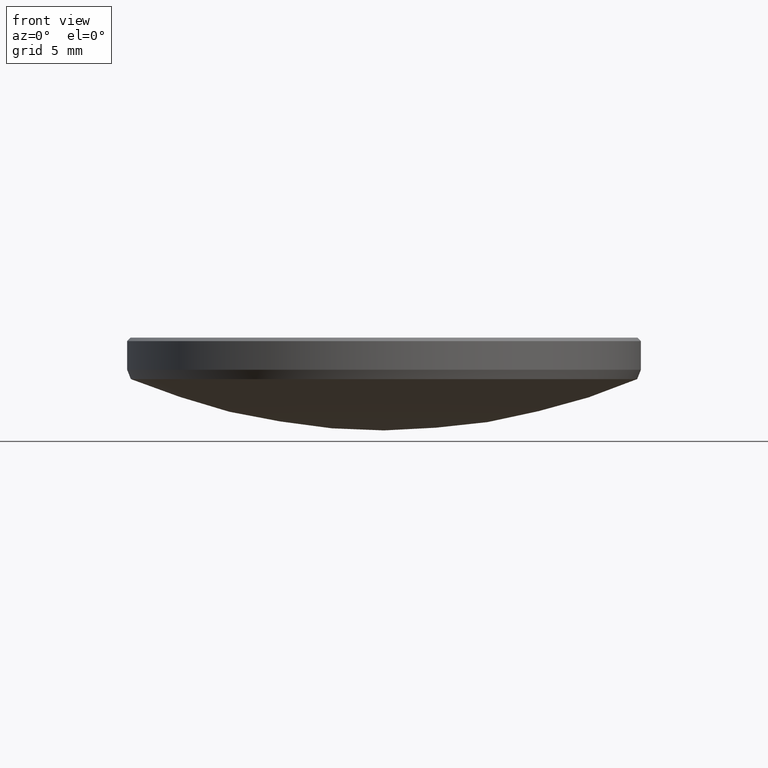
[diagram: clean part render]
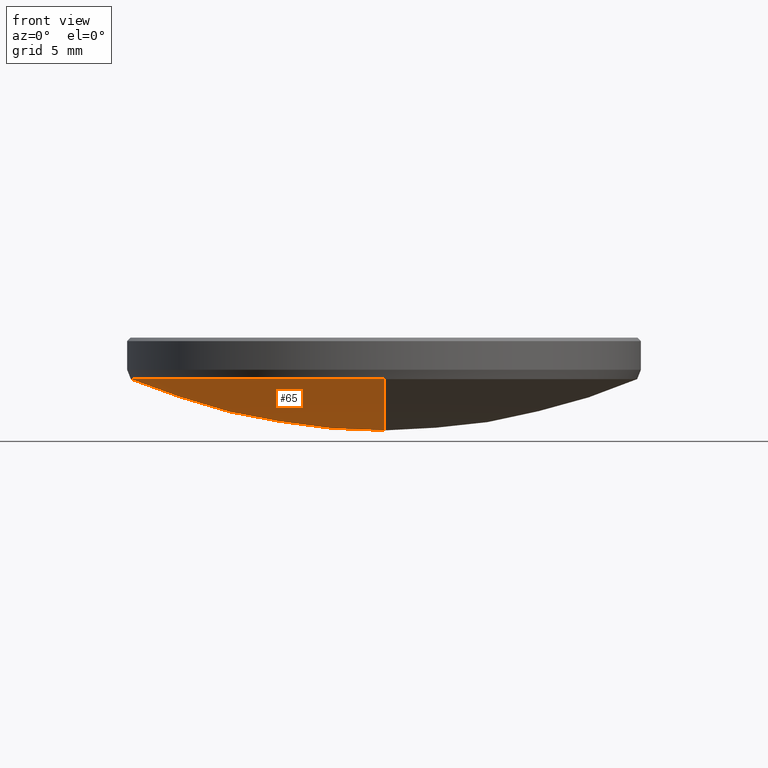
[diagram: same view with one face highlighted and labeled with its STEP entity id]
A machine part, front view. The second image highlights one B-rep face of the part: STEP entity #65.
In plain terms, the highlighted spherical surface has radius 32.14 mm.
Its self-contained STEP definition (entity closure, byte-faithful):
#19 = CARTESIAN_POINT ( 'NONE',  ( 0.000000000000000000, 0.000000000000000000, 3.921783238787050596 ) ) ;
#25 = DIRECTION ( 'NONE',  ( 1.000000000000000000, 0.000000000000000000, 0.000000000000000000 ) ) ;
#32 = AXIS2_PLACEMENT_3D ( 'NONE', #19, #198, #25 ) ;
#36 = CIRCLE ( 'NONE', #219, 12.51660009051966682 ) ;
#41 = EDGE_LOOP ( 'NONE', ( #82, #53, #59, #161 ) ) ;
#53 = ORIENTED_EDGE ( 'NONE', *, *, #160, .T. ) ;
#57 = CARTESIAN_POINT ( 'NONE',  ( 0.000000000000000000, 12.51660009051965972, 3.921783238787048820 ) ) ;
#59 = ORIENTED_EDGE ( 'NONE', *, *, #249, .T. ) ;
#65 = ADVANCED_FACE ( 'NONE', ( #189 ), #271, .T. ) ;
#72 = DIRECTION ( 'NONE',  ( 1.000000000000000000, -0.000000000000000000, 0.000000000000000000 ) ) ;
#74 = CIRCLE ( 'NONE', #133, 32.14000000000000057 ) ;
#82 = ORIENTED_EDGE ( 'NONE', *, *, #221, .F. ) ;
#83 = VERTEX_POINT ( 'NONE', #273 ) ;
#128 = CARTESIAN_POINT ( 'NONE',  ( 0.000000000000000000, 0.000000000000000000, 3.921783238787050596 ) ) ;
#133 = AXIS2_PLACEMENT_3D ( 'NONE', #282, #173, #196 ) ;
#146 = AXIS2_PLACEMENT_3D ( 'NONE', #153, #72, #225 ) ;
#153 = CARTESIAN_POINT ( 'NONE',  ( 0.000000000000000000, 0.000000000000000000, 33.52438991749025377 ) ) ;
#160 = EDGE_CURVE ( 'NONE', #224, #313, #74, .T. ) ;
#161 = ORIENTED_EDGE ( 'NONE', *, *, #167, .T. ) ;
#167 = EDGE_CURVE ( 'NONE', #83, #307, #264, .T. ) ;
#173 = DIRECTION ( 'NONE',  ( -1.000000000000000000, 1.224646799147353207E-16, 0.000000000000000000 ) ) ;
#176 = CIRCLE ( 'NONE', #146, 32.14000000000000057 ) ;
#189 = FACE_OUTER_BOUND ( 'NONE', #41, .T. ) ;
#196 = DIRECTION ( 'NONE',  ( -1.224646799147353207E-16, -1.000000000000000000, 0.000000000000000000 ) ) ;
#198 = DIRECTION ( 'NONE',  ( 0.000000000000000000, 0.000000000000000000, -1.000000000000000000 ) ) ;
#211 = CARTESIAN_POINT ( 'NONE',  ( -1.532841423706237562E-15, -12.51660009051965972, 3.921783238787048820 ) ) ;
#219 = AXIS2_PLACEMENT_3D ( 'NONE', #128, #258, #230 ) ;
#221 = EDGE_CURVE ( 'NONE', #224, #307, #176, .T. ) ;
#224 = VERTEX_POINT ( 'NONE', #254 ) ;
#225 = DIRECTION ( 'NONE',  ( 0.000000000000000000, 0.000000000000000000, -1.000000000000000000 ) ) ;
#230 = DIRECTION ( 'NONE',  ( 1.000000000000000000, 0.000000000000000000, 0.000000000000000000 ) ) ;
#236 = DIRECTION ( 'NONE',  ( 0.000000000000000000, 1.000000000000000000, 0.000000000000000000 ) ) ;
#245 = CARTESIAN_POINT ( 'NONE',  ( 0.000000000000000000, 0.000000000000000000, 33.52438991749025377 ) ) ;
#249 = EDGE_CURVE ( 'NONE', #313, #83, #36, .T. ) ;
#254 = CARTESIAN_POINT ( 'NONE',  ( 0.000000000000000000, 1.968007406229796560E-15, 1.384389917490250088 ) ) ;
#258 = DIRECTION ( 'NONE',  ( 0.000000000000000000, 0.000000000000000000, -1.000000000000000000 ) ) ;
#264 = CIRCLE ( 'NONE', #32, 12.51660009051966682 ) ;
#271 = SPHERICAL_SURFACE ( 'NONE', #275, 32.14000000000000057 ) ;
#273 = CARTESIAN_POINT ( 'NONE',  ( -12.51660009051966860, 1.544071429311688688E-15, 3.921783238787050596 ) ) ;
#275 = AXIS2_PLACEMENT_3D ( 'NONE', #245, #298, #236 ) ;
#282 = CARTESIAN_POINT ( 'NONE',  ( 0.000000000000000000, 0.000000000000000000, 33.52438991749025377 ) ) ;
#298 = DIRECTION ( 'NONE',  ( -1.000000000000000000, 0.000000000000000000, 0.000000000000000000 ) ) ;
#307 = VERTEX_POINT ( 'NONE', #57 ) ;
#313 = VERTEX_POINT ( 'NONE', #211 ) ;